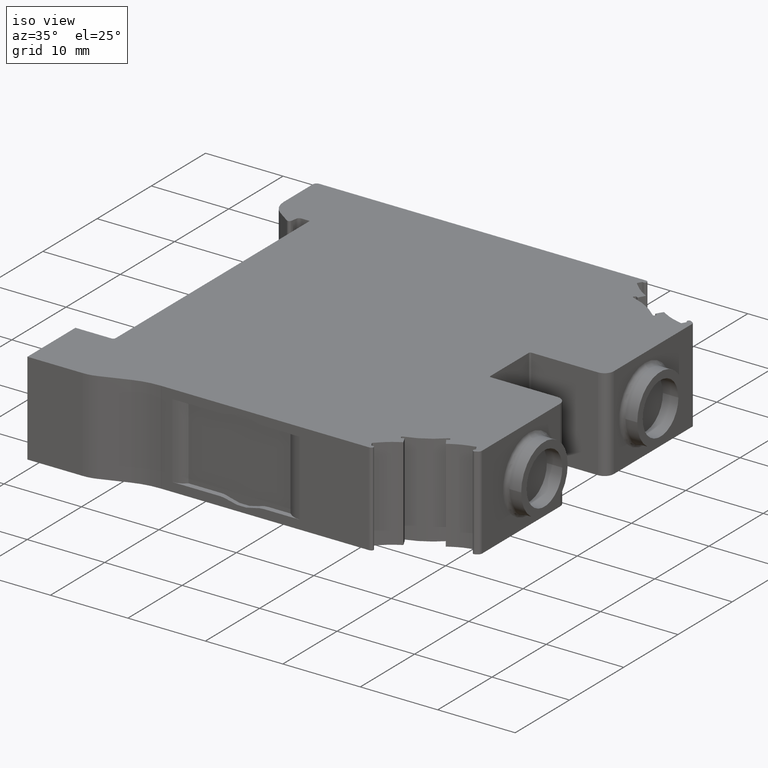
[diagram: clean part render]
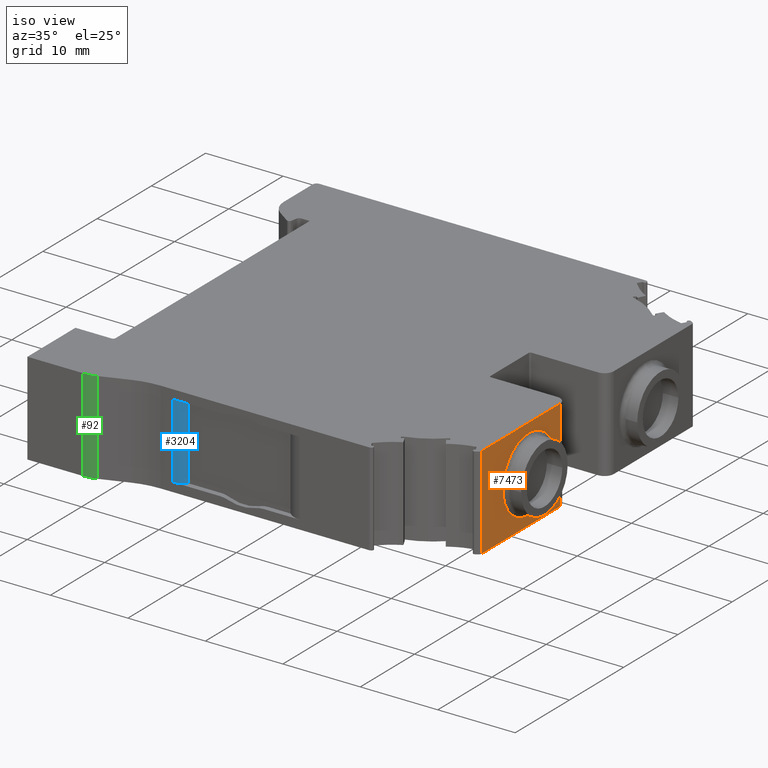
[diagram: same view with three faces highlighted in distinct colors, each labeled with its STEP entity id]
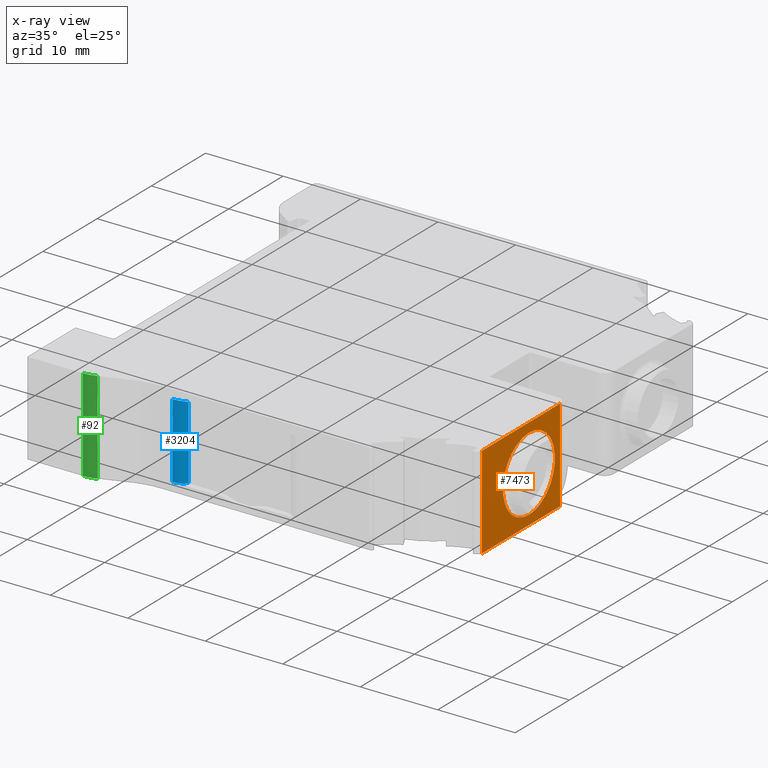
[diagram: x-ray of the same camera — body ghosted, the three highlighted faces saturated]
A machine part, iso view with three faces highlighted in distinct colors.
The next image is the same camera in x-ray (body ghosted, the three faces saturated) — at least one of them is partly hidden behind the body in this view.
Their STEP definitions:

[orange] entity #7473 — the highlighted planar face has unit normal (-1, -0, -0).
#194 = CARTESIAN_POINT ( 'NONE',  ( 570.6671547012707606, -63.84747528197362243, -52.67682776579979276 ) ) ;
#234 = CARTESIAN_POINT ( 'NONE',  ( 570.6671547012699648, -72.49131088866367634, -89.11532858496988752 ) ) ;
#239 = EDGE_CURVE ( 'NONE', #3033, #4223, #14943, .T. ) ;
#493 = EDGE_CURVE ( 'NONE', #16582, #3033, #2117, .T. ) ;
#821 = ORIENTED_EDGE ( 'NONE', *, *, #3581, .F. ) ;
#828 = CIRCLE ( 'NONE', #13195, 4.789456979866151265 ) ;
#1315 = DIRECTION ( 'NONE',  ( -1.000000000000000000, -1.047444401649752220E-14, -2.701880337695884866E-14 ) ) ;
#1486 = LINE ( 'NONE', #234, #10013 ) ;
#1827 = FACE_OUTER_BOUND ( 'NONE', #10074, .T. ) ;
#2022 = CARTESIAN_POINT ( 'NONE',  ( 570.6671547050843856, -58.09747452346395136, -63.46407265014253340 ) ) ;
#2058 = CARTESIAN_POINT ( 'NONE',  ( 570.6671547050844993, -58.09747452346425689, -51.46849684111612788 ) ) ;
#2105 = DIRECTION ( 'NONE',  ( -2.313955077234213448E-14, -1.000000000000000000, -6.749035641933122293E-15 ) ) ;
#2117 = LINE ( 'NONE', #13109, #5507 ) ;
#2164 = ORIENTED_EDGE ( 'NONE', *, *, #14170, .T. ) ;
#2556 = CARTESIAN_POINT ( 'NONE',  ( 570.6671547050843856, -58.09747452346395136, -63.46407265014253340 ) ) ;
#2776 = CARTESIAN_POINT ( 'NONE',  ( 570.6671547050840445, -72.49131088893324204, -51.46849684113163192 ) ) ;
#2926 = VECTOR ( 'NONE', #2105, 1000.000000000000000 ) ;
#3033 = VERTEX_POINT ( 'NONE', #2058 ) ;
#3266 = DIRECTION ( 'NONE',  ( -2.754601625598740000E-14, 1.000000000000000000, 6.982962677686270655E-15 ) ) ;
#3425 = EDGE_CURVE ( 'NONE', #11846, #11787, #828, .T. ) ;
#3562 = DIRECTION ( 'NONE',  ( -8.597901537443017952E-31, -4.406877377903674902E-17, 1.000000000000000000 ) ) ;
#3581 = EDGE_CURVE ( 'NONE', #5198, #4223, #1486, .T. ) ;
#3616 = EDGE_LOOP ( 'NONE', ( #8673, #2164 ) ) ;
#3945 = DIRECTION ( 'NONE',  ( -2.313955077234213448E-14, -1.000000000000000000, -1.077303488295633101E-12 ) ) ;
#4223 = VERTEX_POINT ( 'NONE', #2776 ) ;
#4556 = LINE ( 'NONE', #2022, #2926 ) ;
#5129 = AXIS2_PLACEMENT_3D ( 'NONE', #14259, #15542, #3266 ) ;
#5186 = DIRECTION ( 'NONE',  ( 2.318056158124596975E-14, 1.179311070445888642E-12, -1.000000000000000000 ) ) ;
#5198 = VERTEX_POINT ( 'NONE', #7654 ) ;
#5507 = VECTOR ( 'NONE', #3562, 1000.000000000000000 ) ;
#7473 = ADVANCED_FACE ( 'NONE', ( #1827, #15623 ), #9018, .F. ) ;
#7654 = CARTESIAN_POINT ( 'NONE',  ( 570.6671547050841582, -72.49131088893263097, -63.46407265014263288 ) ) ;
#8138 = CARTESIAN_POINT ( 'NONE',  ( 570.6671547012709880, -63.84747528196798072, -57.46628474566593781 ) ) ;
#8659 = DIRECTION ( 'NONE',  ( 2.318056158124596975E-14, 1.179311070445888642E-12, -1.000000000000000000 ) ) ;
#8673 = ORIENTED_EDGE ( 'NONE', *, *, #3425, .T. ) ;
#9018 = PLANE ( 'NONE',  #5129 ) ;
#9741 = ORIENTED_EDGE ( 'NONE', *, *, #493, .T. ) ;
#10013 = VECTOR ( 'NONE', #12474, 1000.000000000000000 ) ;
#10074 = EDGE_LOOP ( 'NONE', ( #9741, #13210, #821, #16114 ) ) ;
#11384 = EDGE_CURVE ( 'NONE', #16582, #5198, #4556, .T. ) ;
#11787 = VERTEX_POINT ( 'NONE', #194 ) ;
#11846 = VERTEX_POINT ( 'NONE', #17479 ) ;
#12474 = DIRECTION ( 'NONE',  ( -8.597901537443017952E-31, -4.406877377903674902E-17, 1.000000000000000000 ) ) ;
#12560 = CARTESIAN_POINT ( 'NONE',  ( 570.6671547012709880, -63.84747528196798072, -57.46628474566593781 ) ) ;
#13109 = CARTESIAN_POINT ( 'NONE',  ( 570.6671547012699648, -58.09747452319755467, -89.11532858496988752 ) ) ;
#13195 = AXIS2_PLACEMENT_3D ( 'NONE', #8138, #1315, #5186 ) ;
#13210 = ORIENTED_EDGE ( 'NONE', *, *, #239, .T. ) ;
#14170 = EDGE_CURVE ( 'NONE', #11787, #11846, #15454, .T. ) ;
#14259 = CARTESIAN_POINT ( 'NONE',  ( 570.6671547012699648, -58.09747452319755467, -89.11532858496988752 ) ) ;
#14943 = LINE ( 'NONE', #17639, #16131 ) ;
#15449 = DIRECTION ( 'NONE',  ( -1.000000000000000000, -1.047444401649752220E-14, -2.701880337695884866E-14 ) ) ;
#15454 = CIRCLE ( 'NONE', #16608, 4.789456979866151265 ) ;
#15542 = DIRECTION ( 'NONE',  ( -1.000000000000000000, -2.754601625598740000E-14, -2.073709312643196357E-30 ) ) ;
#15623 = FACE_BOUND ( 'NONE', #3616, .T. ) ;
#16114 = ORIENTED_EDGE ( 'NONE', *, *, #11384, .F. ) ;
#16131 = VECTOR ( 'NONE', #3945, 1000.000000000000000 ) ;
#16582 = VERTEX_POINT ( 'NONE', #2556 ) ;
#16608 = AXIS2_PLACEMENT_3D ( 'NONE', #12560, #15449, #8659 ) ;
#17479 = CARTESIAN_POINT ( 'NONE',  ( 570.6671547012709880, -63.84747528196233191, -62.25574172553209706 ) ) ;
#17639 = CARTESIAN_POINT ( 'NONE',  ( 570.6671547050843856, -58.09747452338377371, -51.46849684111612078 ) ) ;

[blue] entity #3204 — the highlighted cylindrical surface (edge-blend (fillet) strip) has radius 3 mm, axis along (-0, -0, 1).
#105 = VERTEX_POINT ( 'NONE', #13216 ) ;
#193 =( BOUNDED_CURVE ( )  B_SPLINE_CURVE ( 3, ( #14708, #6500, #12005, #17515 ),
 .UNSPECIFIED., .F., .T. ) 
 B_SPLINE_CURVE_WITH_KNOTS ( ( 4, 4 ),
 ( 9.606264776357394918E-07, 0.6132403293916038889 ),
 .UNSPECIFIED. ) 
 CURVE ( )  GEOMETRIC_REPRESENTATION_ITEM ( )  RATIONAL_B_SPLINE_CURVE ( ( 1.000000000000000000, 0.9689062143095112933, 0.9689062143095112933, 1.000000000000000000 ) ) 
 REPRESENTATION_ITEM ( '' )  );
#1594 =( BOUNDED_CURVE ( )  B_SPLINE_CURVE ( 3, ( #16213, #9167, #9073, #11953 ),
 .UNSPECIFIED., .F., .T. ) 
 B_SPLINE_CURVE_WITH_KNOTS ( ( 4, 4 ),
 ( 9.606264988128356284E-07, 0.6132406391762589282 ),
 .UNSPECIFIED. ) 
 CURVE ( )  GEOMETRIC_REPRESENTATION_ITEM ( )  RATIONAL_B_SPLINE_CURVE ( ( 1.000000000000000000, 0.9689061831412753012, 0.9689061831412753012, 1.000000000000000000 ) ) 
 REPRESENTATION_ITEM ( '' )  );
#2247 = CARTESIAN_POINT ( 'NONE',  ( 534.9837058347636685, -75.64749154548837851, 500040.8164075078093 ) ) ;
#2336 = EDGE_CURVE ( 'NONE', #17717, #105, #193, .T. ) ;
#2595 = EDGE_CURVE ( 'NONE', #17717, #2996, #3254, .T. ) ;
#2996 = VERTEX_POINT ( 'NONE', #11602 ) ;
#3204 = ADVANCED_FACE ( 'NONE', ( #4856 ), #10342, .T. ) ;
#3254 = LINE ( 'NONE', #11537, #6819 ) ;
#3505 = DIRECTION ( 'NONE',  ( -5.259174814796319490E-14, -1.179405552966797949E-12, 1.000000000000000000 ) ) ;
#4646 = ORIENTED_EDGE ( 'NONE', *, *, #9615, .F. ) ;
#4693 = DIRECTION ( 'NONE',  ( -5.259174814796319490E-14, -1.179405552966797949E-12, 1.000000000000000000 ) ) ;
#4856 = FACE_OUTER_BOUND ( 'NONE', #17569, .T. ) ;
#6499 = CARTESIAN_POINT ( 'NONE',  ( 534.9837058610437452, -78.64749089847626351, -62.30552544547870752 ) ) ;
#6500 = CARTESIAN_POINT ( 'NONE',  ( 535.6067542044286256, -78.64749089847671826, -62.30552533997041564 ) ) ;
#6819 = VECTOR ( 'NONE', #4693, 1000.000000000000000 ) ;
#7608 = CARTESIAN_POINT ( 'NONE',  ( 536.7102653637881531, -78.10085434865007414, -52.72343111051225151 ) ) ;
#7990 = DIRECTION ( 'NONE',  ( 5.259174814796319490E-14, 1.179405552966797949E-12, -1.000000000000000000 ) ) ;
#9073 = CARTESIAN_POINT ( 'NONE',  ( 536.2007437557691674, -78.45943122180497653, -52.66020424683498646 ) ) ;
#9167 = CARTESIAN_POINT ( 'NONE',  ( 535.6067545293044532, -78.64749089808110227, -52.62704415131199909 ) ) ;
#9615 = EDGE_CURVE ( 'NONE', #11027, #105, #13132, .T. ) ;
#9628 = VECTOR ( 'NONE', #7990, 1000.000000000000000 ) ;
#10342 = CYLINDRICAL_SURFACE ( 'NONE', #12054, 2.999999942405739972 ) ;
#11027 = VERTEX_POINT ( 'NONE', #7608 ) ;
#11537 = CARTESIAN_POINT ( 'NONE',  ( 534.9837058610631857, -78.64749089808151439, -52.62704440154939789 ) ) ;
#11602 = CARTESIAN_POINT ( 'NONE',  ( 534.9837058610631857, -78.64749089808151439, -52.62704404580357220 ) ) ;
#11952 = CARTESIAN_POINT ( 'NONE',  ( 536.7102653374874990, -78.10085493846318627, 500040.8164075078093 ) ) ;
#11953 = CARTESIAN_POINT ( 'NONE',  ( 536.7102653637881531, -78.10085434865007414, -52.72343111051225151 ) ) ;
#12005 = CARTESIAN_POINT ( 'NONE',  ( 536.2007431503172938, -78.45943141225893669, -62.27236527795967902 ) ) ;
#12054 = AXIS2_PLACEMENT_3D ( 'NONE', #2247, #3505, #17293 ) ;
#13132 = LINE ( 'NONE', #11952, #9628 ) ;
#13216 = CARTESIAN_POINT ( 'NONE',  ( 536.7102646037484419, -78.10085488391038666, -62.20913847501328320 ) ) ;
#14708 = CARTESIAN_POINT ( 'NONE',  ( 534.9837058610437452, -78.64749089847626351, -62.30552544547870752 ) ) ;
#16213 = CARTESIAN_POINT ( 'NONE',  ( 534.9837058610631857, -78.64749089808151439, -52.62704404580357220 ) ) ;
#17016 = ORIENTED_EDGE ( 'NONE', *, *, #2336, .T. ) ;
#17267 = ORIENTED_EDGE ( 'NONE', *, *, #17400, .F. ) ;
#17293 = DIRECTION ( 'NONE',  ( -1.000000000000000000, -9.251858716160956199E-15, 0.000000000000000000 ) ) ;
#17400 = EDGE_CURVE ( 'NONE', #2996, #11027, #1594, .T. ) ;
#17515 = CARTESIAN_POINT ( 'NONE',  ( 536.7102646037484419, -78.10085488391038666, -62.20913847501328320 ) ) ;
#17569 = EDGE_LOOP ( 'NONE', ( #4646, #17267, #17584, #17016 ) ) ;
#17584 = ORIENTED_EDGE ( 'NONE', *, *, #2595, .F. ) ;
#17717 = VERTEX_POINT ( 'NONE', #6499 ) ;

[green] entity #92 — the highlighted cylindrical surface (partial cylindrical patch) has radius 4.9289 mm, axis along (-0, 0, -1).
#92 = ADVANCED_FACE ( 'NONE', ( #695 ), #7616, .T. ) ;
#264 = EDGE_LOOP ( 'NONE', ( #3971, #15926, #10515, #7650 ) ) ;
#364 = EDGE_CURVE ( 'NONE', #2179, #14835, #9701, .T. ) ;
#412 = CIRCLE ( 'NONE', #981, 4.928880694226117853 ) ;
#580 = VERTEX_POINT ( 'NONE', #859 ) ;
#695 = FACE_OUTER_BOUND ( 'NONE', #264, .T. ) ;
#859 = CARTESIAN_POINT ( 'NONE',  ( 526.6429214533681034, -80.49741004147701062, -51.46849684114206980 ) ) ;
#981 = AXIS2_PLACEMENT_3D ( 'NONE', #1243, #9527, #1334 ) ;
#1243 = CARTESIAN_POINT ( 'NONE',  ( 524.9571449728298376, -75.86577722404098267, -51.46849684113713153 ) ) ;
#1334 = DIRECTION ( 'NONE',  ( -2.252485084343215928E-14, -1.000000000000000000, -1.076969430951600127E-12 ) ) ;
#1376 = DIRECTION ( 'NONE',  ( -1.706662860027260475E-28, 6.982966722218760189E-15, -1.000000000000000000 ) ) ;
#1965 = DIRECTION ( 'NONE',  ( 0.000000000000000000, 1.000000000000000000, 7.039015888572549578E-15 ) ) ;
#2179 = VERTEX_POINT ( 'NONE', #7571 ) ;
#3126 = CARTESIAN_POINT ( 'NONE',  ( 524.9571449728301786, -80.79465791827057330, 23.51836098756376714 ) ) ;
#3971 = ORIENTED_EDGE ( 'NONE', *, *, #16701, .F. ) ;
#5545 = CIRCLE ( 'NONE', #7836, 4.928880694226117853 ) ;
#5743 = CARTESIAN_POINT ( 'NONE',  ( 524.9571449728298376, -75.86577722404091162, -63.46407265014266130 ) ) ;
#7571 = CARTESIAN_POINT ( 'NONE',  ( 524.9571449728298376, -80.79465791826710586, -51.46849684114244639 ) ) ;
#7616 = CYLINDRICAL_SURFACE ( 'NONE', #16414, 4.928880694226117853 ) ;
#7650 = ORIENTED_EDGE ( 'NONE', *, *, #10948, .F. ) ;
#7711 = DIRECTION ( 'NONE',  ( -1.706662860027260251E-28, 6.982966722218760189E-15, -1.000000000000000000 ) ) ;
#7836 = AXIS2_PLACEMENT_3D ( 'NONE', #5743, #17738, #10491 ) ;
#8555 = VECTOR ( 'NONE', #1376, 1000.000000000000000 ) ;
#8562 = VECTOR ( 'NONE', #16834, 1000.000000000000000 ) ;
#9527 = DIRECTION ( 'NONE',  ( 4.089659118476204995E-14, 1.077303488295632091E-12, -1.000000000000000000 ) ) ;
#9701 = LINE ( 'NONE', #3126, #8562 ) ;
#10448 = CARTESIAN_POINT ( 'NONE',  ( 526.6429214533681034, -80.49741004148002332, -63.46407265014268262 ) ) ;
#10491 = DIRECTION ( 'NONE',  ( 0.000000000000000000, 1.000000000000000000, 5.631212710858039821E-15 ) ) ;
#10515 = ORIENTED_EDGE ( 'NONE', *, *, #364, .T. ) ;
#10948 = EDGE_CURVE ( 'NONE', #13201, #14835, #5545, .T. ) ;
#13201 = VERTEX_POINT ( 'NONE', #10448 ) ;
#14835 = VERTEX_POINT ( 'NONE', #16143 ) ;
#15074 = LINE ( 'NONE', #15256, #8555 ) ;
#15256 = CARTESIAN_POINT ( 'NONE',  ( 526.6429214533681034, -80.49741004148063439, 23.51836098756378135 ) ) ;
#15926 = ORIENTED_EDGE ( 'NONE', *, *, #17527, .T. ) ;
#15937 = CARTESIAN_POINT ( 'NONE',  ( 524.9571449728298376, -75.86577722404152269, 23.51836098756380977 ) ) ;
#16143 = CARTESIAN_POINT ( 'NONE',  ( 524.9571449728301786, -80.79465791826996224, -63.46407265014269683 ) ) ;
#16414 = AXIS2_PLACEMENT_3D ( 'NONE', #15937, #7711, #1965 ) ;
#16701 = EDGE_CURVE ( 'NONE', #580, #13201, #15074, .T. ) ;
#16834 = DIRECTION ( 'NONE',  ( -1.706662860027260475E-28, 6.982966722218760189E-15, -1.000000000000000000 ) ) ;
#17527 = EDGE_CURVE ( 'NONE', #580, #2179, #412, .T. ) ;
#17738 = DIRECTION ( 'NONE',  ( -1.706662860027260251E-28, 6.982966722218760189E-15, -1.000000000000000000 ) ) ;